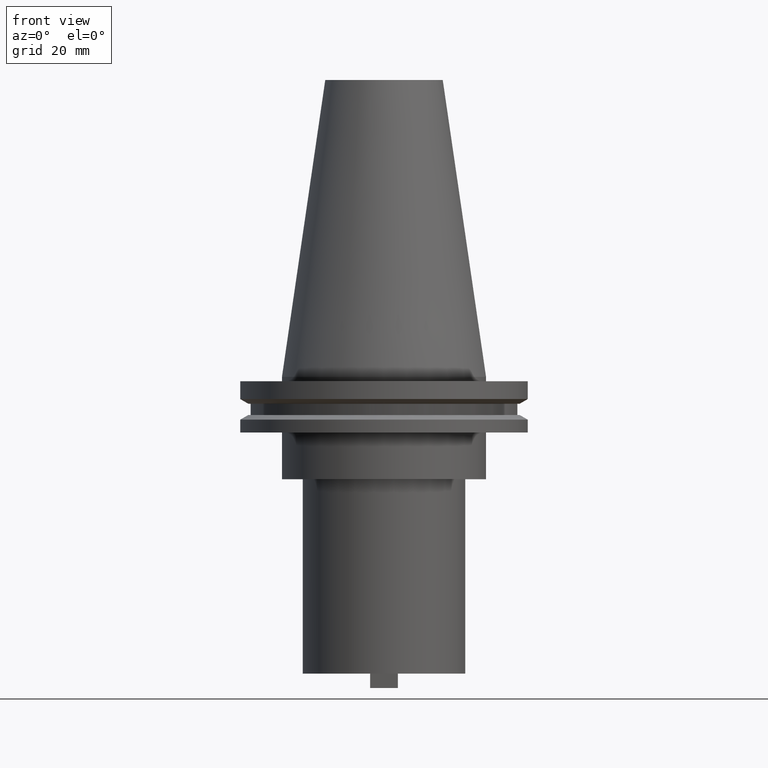
[diagram: clean part render]
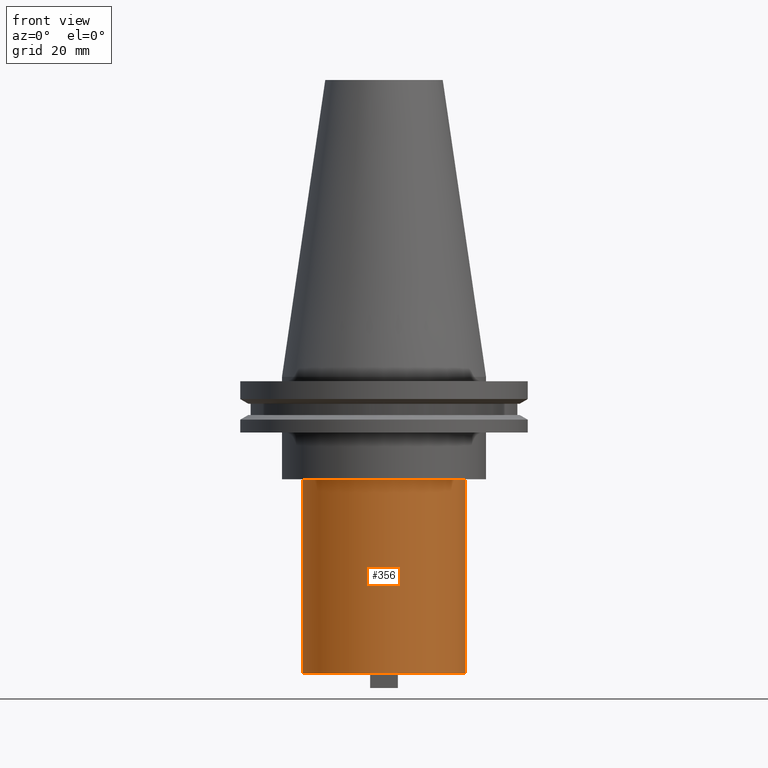
[diagram: same view with one face highlighted and labeled with its STEP entity id]
A machine part, front view. The second image highlights one B-rep face of the part: STEP entity #356.
In plain terms, the highlighted cylindrical surface (partial cylindrical patch) has radius 27.8003 mm, axis along (-0, -0, 1).
Its self-contained STEP definition (entity closure, byte-faithful):
#39 = EDGE_CURVE ( 'NONE', #75, #269, #111, .T. ) ;
#52 = CARTESIAN_POINT ( 'NONE',  ( 0.000000000000000000, 0.000000000000000000, -35.04999999999999716 ) ) ;
#75 = VERTEX_POINT ( 'NONE', #566 ) ;
#111 = CIRCLE ( 'NONE', #145, 27.80030000000000001 ) ;
#117 = DIRECTION ( 'NONE',  ( 0.000000000000000000, 0.000000000000000000, -1.000000000000000000 ) ) ;
#145 = AXIS2_PLACEMENT_3D ( 'NONE', #52, #117, #636 ) ;
#148 = CARTESIAN_POINT ( 'NONE',  ( 0.000000000000000000, 0.000000000000000000, -101.5999999999999943 ) ) ;
#157 = EDGE_CURVE ( 'NONE', #419, #804, #937, .T. ) ;
#207 = CARTESIAN_POINT ( 'NONE',  ( -27.80030000000000001, 3.404554841033616429E-15, -101.5999999999999943 ) ) ;
#220 = DIRECTION ( 'NONE',  ( -0.000000000000000000, -0.000000000000000000, 1.000000000000000000 ) ) ;
#247 = FACE_OUTER_BOUND ( 'NONE', #704, .T. ) ;
#252 = CARTESIAN_POINT ( 'NONE',  ( -27.80030000000000001, 3.404554841033616429E-15, 0.000000000000000000 ) ) ;
#266 = VECTOR ( 'NONE', #1057, 1000.000000000000000 ) ;
#269 = VERTEX_POINT ( 'NONE', #670 ) ;
#341 = ORIENTED_EDGE ( 'NONE', *, *, #732, .F. ) ;
#347 = CARTESIAN_POINT ( 'NONE',  ( 0.000000000000000000, 0.000000000000000000, 0.000000000000000000 ) ) ;
#356 = ADVANCED_FACE ( 'NONE', ( #247 ), #765, .T. ) ;
#383 = CARTESIAN_POINT ( 'NONE',  ( 27.80030000000000001, 0.000000000000000000, 0.000000000000000000 ) ) ;
#419 = VERTEX_POINT ( 'NONE', #207 ) ;
#422 = DIRECTION ( 'NONE',  ( 1.000000000000000000, 0.000000000000000000, 0.000000000000000000 ) ) ;
#474 = ORIENTED_EDGE ( 'NONE', *, *, #157, .T. ) ;
#562 = DIRECTION ( 'NONE',  ( 1.000000000000000000, 0.000000000000000000, 0.000000000000000000 ) ) ;
#566 = CARTESIAN_POINT ( 'NONE',  ( 27.80030000000000001, 0.000000000000000000, -35.04999999999999716 ) ) ;
#590 = EDGE_CURVE ( 'NONE', #804, #75, #652, .T. ) ;
#603 = AXIS2_PLACEMENT_3D ( 'NONE', #148, #220, #562 ) ;
#636 = DIRECTION ( 'NONE',  ( 1.000000000000000000, 0.000000000000000000, 0.000000000000000000 ) ) ;
#652 = LINE ( 'NONE', #383, #266 ) ;
#670 = CARTESIAN_POINT ( 'NONE',  ( -27.80030000000000001, 3.404554841033616429E-15, -35.04999999999999716 ) ) ;
#675 = LINE ( 'NONE', #252, #815 ) ;
#682 = DIRECTION ( 'NONE',  ( -0.000000000000000000, -0.000000000000000000, 1.000000000000000000 ) ) ;
#704 = EDGE_LOOP ( 'NONE', ( #341, #474, #1059, #931 ) ) ;
#732 = EDGE_CURVE ( 'NONE', #419, #269, #675, .T. ) ;
#765 = CYLINDRICAL_SURFACE ( 'NONE', #1061, 27.80030000000000001 ) ;
#800 = CARTESIAN_POINT ( 'NONE',  ( 27.80030000000000001, 0.000000000000000000, -101.5999999999999943 ) ) ;
#804 = VERTEX_POINT ( 'NONE', #800 ) ;
#815 = VECTOR ( 'NONE', #829, 1000.000000000000000 ) ;
#829 = DIRECTION ( 'NONE',  ( -0.000000000000000000, -0.000000000000000000, 1.000000000000000000 ) ) ;
#931 = ORIENTED_EDGE ( 'NONE', *, *, #39, .T. ) ;
#937 = CIRCLE ( 'NONE', #603, 27.80030000000000001 ) ;
#1057 = DIRECTION ( 'NONE',  ( -0.000000000000000000, -0.000000000000000000, 1.000000000000000000 ) ) ;
#1059 = ORIENTED_EDGE ( 'NONE', *, *, #590, .T. ) ;
#1061 = AXIS2_PLACEMENT_3D ( 'NONE', #347, #682, #422 ) ;